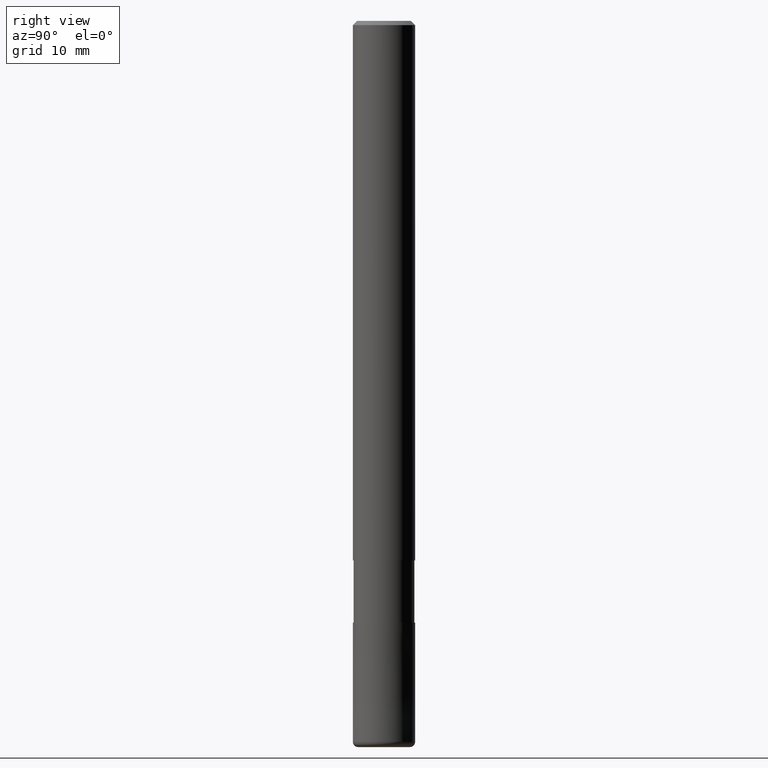
[diagram: clean part render]
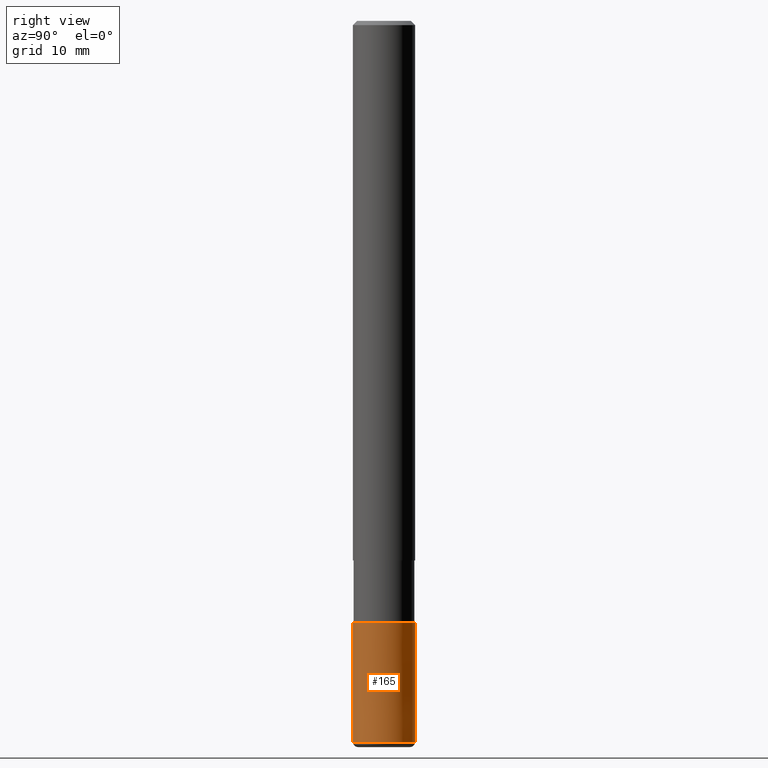
[diagram: same view with one face highlighted and labeled with its STEP entity id]
A machine part, right view. The second image highlights one B-rep face of the part: STEP entity #165.
In plain terms, the highlighted conical surface has half-angle 0 deg.
Its self-contained STEP definition (entity closure, byte-faithful):
#125=EDGE_CURVE('',#281,#207,#314,.T.);
#165=ADVANCED_FACE('',(#362),#363,.T.);
#185=VERTEX_POINT('',#386);
#203=VERTEX_POINT('',#405);
#207=VERTEX_POINT('',#409);
#217=EDGE_CURVE('',#185,#281,#420,.T.);
#247=EDGE_CURVE('',#203,#185,#455,.T.);
#263=EDGE_CURVE('',#203,#207,#472,.T.);
#281=VERTEX_POINT('',#492);
#314=LINE('',#521,#522);
#362=FACE_OUTER_BOUND('',#582,.T.);
#363=CONICAL_SURFACE('',#583,2.99995,8.69565217371222E-006);
#386=CARTESIAN_POINT('',(0.0,3.0,-69.5));
#405=CARTESIAN_POINT('',(0.0,2.9999,-58.0));
#409=CARTESIAN_POINT('',(3.67369660083175E-016,-2.9999,-58.0));
#420=CIRCLE('',#659,3.0);
#455=LINE('',#700,#701);
#472=CIRCLE('',#724,2.9999);
#492=CARTESIAN_POINT('',(3.67381906146713E-016,-3.0,-69.5));
#521=CARTESIAN_POINT('',(3.67375783114944E-016,-2.99995,-63.75));
#522=VECTOR('',#759,1.0);
#582=EDGE_LOOP('',(#828,#829,#830,#831));
#583=AXIS2_PLACEMENT_3D('',#832,#833,#834);
#659=AXIS2_PLACEMENT_3D('',#901,#902,#903);
#700=CARTESIAN_POINT('',(-3.67375783114944E-016,2.99995,-63.75));
#701=VECTOR('',#952,1.0);
#724=AXIS2_PLACEMENT_3D('',#971,#972,#973);
#759=DIRECTION('',(-1.06487509024232E-021,8.69565217360264E-006,0.999999999962193));
#828=ORIENTED_EDGE('',*,*,#247,.F.);
#829=ORIENTED_EDGE('',*,*,#263,.T.);
#830=ORIENTED_EDGE('',*,*,#125,.F.);
#831=ORIENTED_EDGE('',*,*,#217,.F.);
#832=CARTESIAN_POINT('',(0.0,0.0,-63.75));
#833=DIRECTION('',(0.0,-0.0,-1.0));
#834=DIRECTION('',(0.0,1.0,0.0));
#901=CARTESIAN_POINT('',(0.0,0.0,-69.5));
#902=DIRECTION('',(0.0,0.0,-1.0));
#903=DIRECTION('',(0.0,1.0,0.0));
#952=DIRECTION('',(-1.06487509024232E-021,8.69565217360264E-006,-0.999999999962193));
#971=CARTESIAN_POINT('',(0.0,0.0,-58.0));
#972=DIRECTION('',(0.0,0.0,-1.0));
#973=DIRECTION('',(0.0,1.0,0.0));